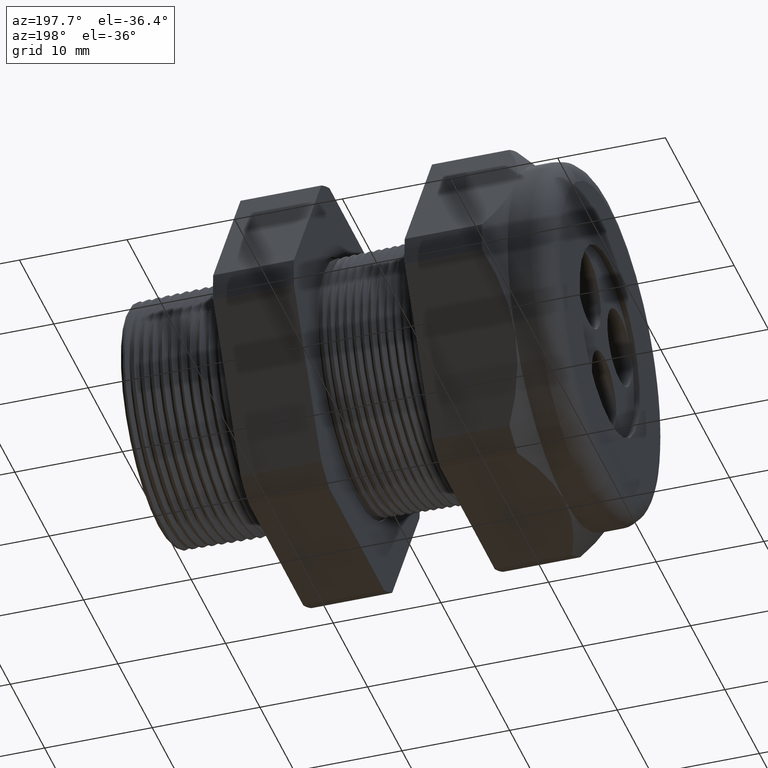
[diagram: clean part render]
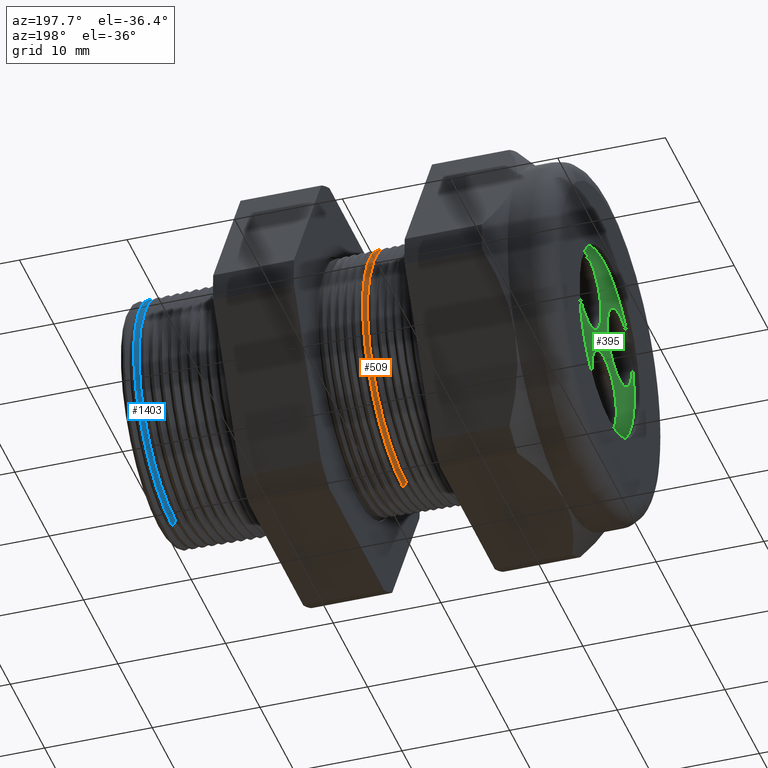
[diagram: same view with three faces highlighted in distinct colors, each labeled with its STEP entity id]
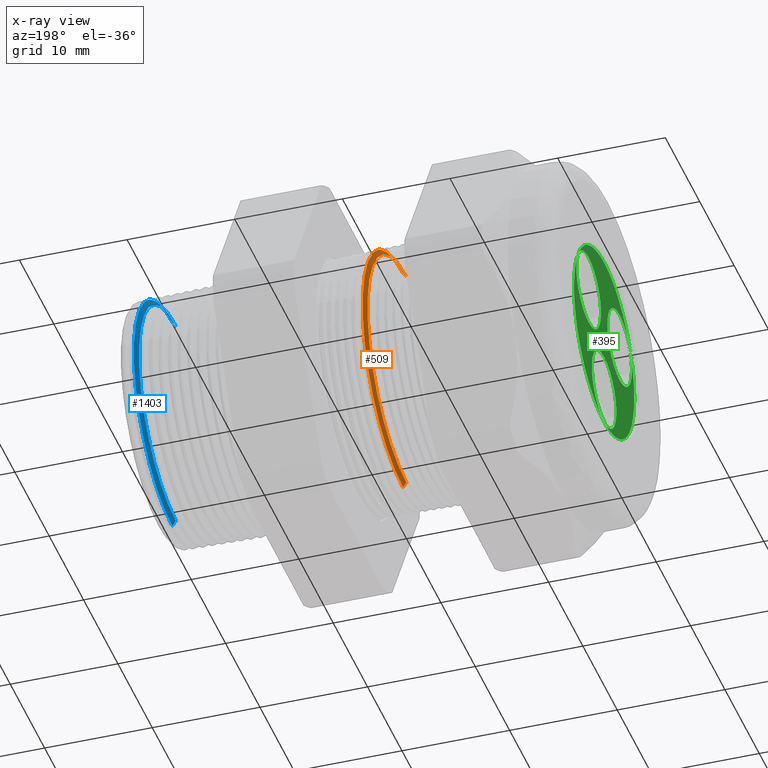
[diagram: x-ray of the same camera — body ghosted, the three highlighted faces saturated]
A machine part, auxiliary view with three faces highlighted in distinct colors.
The next image is the same camera in x-ray (body ghosted, the three faces saturated) — at least one of them is partly hidden behind the body in this view.
Their STEP definitions:

[orange] entity #509 — the highlighted conical surface has half-angle 58.5 deg.
#509 = ADVANCED_FACE ( 'NONE', ( #2498 ), #2497, .T. ) ;
#510 = EDGE_LOOP ( 'NONE', ( #511, #515, #570, #573 ) ) ;
#511 = ORIENTED_EDGE ( 'NONE', *, *, #512, .T. ) ;
#512 = EDGE_CURVE ( 'NONE', #513, #514, #2496, .T. ) ;
#513 = VERTEX_POINT ( 'NONE', #2487 ) ;
#514 = VERTEX_POINT ( 'NONE', #2486 ) ;
#515 = ORIENTED_EDGE ( 'NONE', *, *, #516, .T. ) ;
#516 = EDGE_CURVE ( 'NONE', #514, #569, #2485, .T. ) ;
#569 = VERTEX_POINT ( 'NONE', #2574 ) ;
#570 = ORIENTED_EDGE ( 'NONE', *, *, #571, .T. ) ;
#571 = EDGE_CURVE ( 'NONE', #569, #572, #2634, .T. ) ;
#572 = VERTEX_POINT ( 'NONE', #2629 ) ;
#573 = ORIENTED_EDGE ( 'NONE', *, *, #574, .F. ) ;
#574 = EDGE_CURVE ( 'NONE', #513, #572, #2628, .T. ) ;
#2482 = DIRECTION ( 'NONE',  ( 0.5224985647159348100, 1.044183048100722500E-016, 0.8526401643541007300 ) ) ;
#2483 = VECTOR ( 'NONE', #2482, 39.37007874015748900 ) ;
#2484 = CARTESIAN_POINT ( 'NONE',  ( -0.7865405736958170900, 5.445156066306895900E-017, 0.4446307351718083400 ) ) ;
#2485 = LINE ( 'NONE', #2484, #2483 ) ;
#2486 = CARTESIAN_POINT ( 'NONE',  ( -0.7865405736958170900, 0.0000000000000000000, 0.4446307351718083400 ) ) ;
#2487 = CARTESIAN_POINT ( 'NONE',  ( -0.7865405736958170900, 5.566340435444095800E-017, -0.4446307351718083400 ) ) ;
#2488 = DIRECTION ( 'NONE',  ( 0.0000000000000000000, 0.0000000000000000000, -1.000000000000000000 ) ) ;
#2489 = DIRECTION ( 'NONE',  ( 1.000000000000000000, 0.0000000000000000000, 0.0000000000000000000 ) ) ;
#2490 = CARTESIAN_POINT ( 'NONE',  ( -0.7865405736958170900, 0.0000000000000000000, 0.0000000000000000000 ) ) ;
#2491 = AXIS2_PLACEMENT_3D ( 'NONE', #2490, #2489, #2488 ) ;
#2492 = DIRECTION ( 'NONE',  ( 0.0000000000000000000, 0.0000000000000000000, -1.000000000000000000 ) ) ;
#2493 = DIRECTION ( 'NONE',  ( 1.000000000000000000, 0.0000000000000000000, 0.0000000000000000000 ) ) ;
#2494 = CARTESIAN_POINT ( 'NONE',  ( -0.7865405736958170900, 0.0000000000000000000, 0.0000000000000000000 ) ) ;
#2495 = AXIS2_PLACEMENT_3D ( 'NONE', #2494, #2493, #2492 ) ;
#2496 = CIRCLE ( 'NONE', #2491, 0.4446307351718083400 ) ;
#2497 = CONICAL_SURFACE ( 'NONE', #2495, 0.4446307351718083400, 1.021017612416699200 ) ;
#2498 = FACE_OUTER_BOUND ( 'NONE', #510, .T. ) ;
#2574 = CARTESIAN_POINT ( 'NONE',  ( -0.7747739369317310200, 0.0000000000000000000, 0.4638321412271148000 ) ) ;
#2625 = DIRECTION ( 'NONE',  ( 0.5224985647159348100, 0.0000000000000000000, -0.8526401643541007300 ) ) ;
#2626 = VECTOR ( 'NONE', #2625, 39.37007874015748900 ) ;
#2627 = CARTESIAN_POINT ( 'NONE',  ( -0.7865405736958170900, 0.0000000000000000000, -0.4446307351718083400 ) ) ;
#2628 = LINE ( 'NONE', #2627, #2626 ) ;
#2629 = CARTESIAN_POINT ( 'NONE',  ( -0.7747739369317310200, 5.680305470954492600E-017, -0.4638321412271148000 ) ) ;
#2630 = DIRECTION ( 'NONE',  ( 0.0000000000000000000, 0.0000000000000000000, -1.000000000000000000 ) ) ;
#2631 = DIRECTION ( 'NONE',  ( -1.000000000000000000, 0.0000000000000000000, 0.0000000000000000000 ) ) ;
#2632 = CARTESIAN_POINT ( 'NONE',  ( -0.7747739369317310200, 0.0000000000000000000, 0.0000000000000000000 ) ) ;
#2633 = AXIS2_PLACEMENT_3D ( 'NONE', #2632, #2631, #2630 ) ;
#2634 = CIRCLE ( 'NONE', #2633, 0.4638321412271147500 ) ;

[blue] entity #1403 — the highlighted conical surface has half-angle 58.5 deg.
#1329 = ORIENTED_EDGE ( 'NONE', *, *, #1369, .T. ) ;
#1330 = VERTEX_POINT ( 'NONE', #3787 ) ;
#1331 = EDGE_CURVE ( 'NONE', #1405, #1411, #3786, .T. ) ;
#1332 = EDGE_LOOP ( 'NONE', ( #1406, #1410, #1329, #1333 ) ) ;
#1333 = ORIENTED_EDGE ( 'NONE', *, *, #1334, .F. ) ;
#1334 = EDGE_CURVE ( 'NONE', #1407, #1330, #3782, .T. ) ;
#1369 = EDGE_CURVE ( 'NONE', #1411, #1330, #3834, .T. ) ;
#1403 = ADVANCED_FACE ( 'NONE', ( #3890 ), #3889, .T. ) ;
#1405 = VERTEX_POINT ( 'NONE', #3884 ) ;
#1406 = ORIENTED_EDGE ( 'NONE', *, *, #1408, .T. ) ;
#1407 = VERTEX_POINT ( 'NONE', #3883 ) ;
#1408 = EDGE_CURVE ( 'NONE', #1407, #1405, #3882, .T. ) ;
#1410 = ORIENTED_EDGE ( 'NONE', *, *, #1331, .T. ) ;
#1411 = VERTEX_POINT ( 'NONE', #3934 ) ;
#3779 = DIRECTION ( 'NONE',  ( 0.5224985647159347000, 0.0000000000000000000, -0.8526401643541008400 ) ) ;
#3780 = VECTOR ( 'NONE', #3779, 39.37007874015748100 ) ;
#3781 = CARTESIAN_POINT ( 'NONE',  ( 0.05652926432092481000, 0.0000000000000000000, -0.4212184895733915900 ) ) ;
#3782 = LINE ( 'NONE', #3781, #3780 ) ;
#3783 = DIRECTION ( 'NONE',  ( 0.5224985647159347000, 1.044183048100722800E-016, 0.8526401643541008400 ) ) ;
#3784 = VECTOR ( 'NONE', #3783, 39.37007874015748100 ) ;
#3785 = CARTESIAN_POINT ( 'NONE',  ( 0.05652926432092481000, 5.158438749977368000E-017, 0.4212184895733915900 ) ) ;
#3786 = LINE ( 'NONE', #3785, #3784 ) ;
#3787 = CARTESIAN_POINT ( 'NONE',  ( 0.06910148289796844100, 5.409687239479051700E-017, -0.4417344856692956300 ) ) ;
#3826 = DIRECTION ( 'NONE',  ( 0.0000000000000000000, 0.0000000000000000000, -1.000000000000000000 ) ) ;
#3827 = DIRECTION ( 'NONE',  ( -1.000000000000000000, 0.0000000000000000000, 0.0000000000000000000 ) ) ;
#3828 = CARTESIAN_POINT ( 'NONE',  ( 0.06910148289796844100, 0.0000000000000000000, 0.0000000000000000000 ) ) ;
#3829 = AXIS2_PLACEMENT_3D ( 'NONE', #3828, #3827, #3826 ) ;
#3834 = CIRCLE ( 'NONE', #3829, 0.4417344856692956300 ) ;
#3881 = AXIS2_PLACEMENT_3D ( 'NONE', #3943, #3942, #3941 ) ;
#3882 = CIRCLE ( 'NONE', #3881, 0.4212184895733915900 ) ;
#3883 = CARTESIAN_POINT ( 'NONE',  ( 0.05652926432092481000, 5.287919790946048300E-017, -0.4212184895733915900 ) ) ;
#3884 = CARTESIAN_POINT ( 'NONE',  ( 0.05652926432092481000, 0.0000000000000000000, 0.4212184895733915900 ) ) ;
#3885 = DIRECTION ( 'NONE',  ( 0.0000000000000000000, 0.0000000000000000000, -1.000000000000000000 ) ) ;
#3886 = DIRECTION ( 'NONE',  ( 1.000000000000000000, 0.0000000000000000000, 0.0000000000000000000 ) ) ;
#3887 = CARTESIAN_POINT ( 'NONE',  ( 0.05652926432092481000, 0.0000000000000000000, 0.0000000000000000000 ) ) ;
#3888 = AXIS2_PLACEMENT_3D ( 'NONE', #3887, #3886, #3885 ) ;
#3889 = CONICAL_SURFACE ( 'NONE', #3888, 0.4212184895733915900, 1.021017612416699400 ) ;
#3890 = FACE_OUTER_BOUND ( 'NONE', #1332, .T. ) ;
#3934 = CARTESIAN_POINT ( 'NONE',  ( 0.06910148289796844100, 0.0000000000000000000, 0.4417344856692956300 ) ) ;
#3941 = DIRECTION ( 'NONE',  ( 0.0000000000000000000, 0.0000000000000000000, -1.000000000000000000 ) ) ;
#3942 = DIRECTION ( 'NONE',  ( 1.000000000000000000, 0.0000000000000000000, 0.0000000000000000000 ) ) ;
#3943 = CARTESIAN_POINT ( 'NONE',  ( 0.05652926432092481000, 0.0000000000000000000, 0.0000000000000000000 ) ) ;

[green] entity #395 — the highlighted planar face has unit normal (-1, 0, 0).
#311 = VERTEX_POINT ( 'NONE', #2144 ) ;
#316 = VERTEX_POINT ( 'NONE', #2132 ) ;
#323 = EDGE_CURVE ( 'NONE', #335, #381, #2189, .T. ) ;
#335 = VERTEX_POINT ( 'NONE', #2168 ) ;
#356 = VERTEX_POINT ( 'NONE', #2199 ) ;
#358 = EDGE_CURVE ( 'NONE', #356, #378, #2197, .T. ) ;
#364 = VERTEX_POINT ( 'NONE', #2246 ) ;
#365 = VERTEX_POINT ( 'NONE', #2245 ) ;
#367 = EDGE_CURVE ( 'NONE', #364, #365, #2244, .T. ) ;
#378 = VERTEX_POINT ( 'NONE', #2280 ) ;
#381 = VERTEX_POINT ( 'NONE', #2279 ) ;
#386 = EDGE_CURVE ( 'NONE', #311, #316, #2268, .T. ) ;
#389 = ORIENTED_EDGE ( 'NONE', *, *, #367, .F. ) ;
#390 = EDGE_LOOP ( 'NONE', ( #391, #446 ) ) ;
#391 = ORIENTED_EDGE ( 'NONE', *, *, #452, .F. ) ;
#395 = ADVANCED_FACE ( 'NONE', ( #2317, #2316, #2315, #2314 ), #2313, .T. ) ;
#396 = EDGE_LOOP ( 'NONE', ( #456, #458 ) ) ;
#423 = EDGE_CURVE ( 'NONE', #316, #311, #2341, .T. ) ;
#440 = EDGE_LOOP ( 'NONE', ( #443, #447 ) ) ;
#443 = ORIENTED_EDGE ( 'NONE', *, *, #423, .T. ) ;
#446 = ORIENTED_EDGE ( 'NONE', *, *, #323, .F. ) ;
#447 = ORIENTED_EDGE ( 'NONE', *, *, #386, .T. ) ;
#452 = EDGE_CURVE ( 'NONE', #381, #335, #2365, .T. ) ;
#456 = ORIENTED_EDGE ( 'NONE', *, *, #457, .F. ) ;
#457 = EDGE_CURVE ( 'NONE', #378, #356, #2357, .T. ) ;
#458 = ORIENTED_EDGE ( 'NONE', *, *, #358, .F. ) ;
#459 = EDGE_LOOP ( 'NONE', ( #464, #389 ) ) ;
#464 = ORIENTED_EDGE ( 'NONE', *, *, #465, .F. ) ;
#465 = EDGE_CURVE ( 'NONE', #365, #364, #2398, .T. ) ;
#2132 = CARTESIAN_POINT ( 'NONE',  ( -1.509999999999999800, 0.0000000000000000000, 0.3449999999999999200 ) ) ;
#2144 = CARTESIAN_POINT ( 'NONE',  ( -1.509999999999999800, 4.225031457058367800E-017, -0.3449999999999999200 ) ) ;
#2168 = CARTESIAN_POINT ( 'NONE',  ( -1.509999999999999800, 1.714505518806294400E-017, -0.3444399999999999100 ) ) ;
#2185 = DIRECTION ( 'NONE',  ( 0.0000000000000000000, 0.0000000000000000000, 1.000000000000000000 ) ) ;
#2186 = DIRECTION ( 'NONE',  ( -1.000000000000000000, 0.0000000000000000000, 0.0000000000000000000 ) ) ;
#2187 = CARTESIAN_POINT ( 'NONE',  ( -1.509999999999999800, 0.0000000000000000000, -0.2044399999999999300 ) ) ;
#2188 = AXIS2_PLACEMENT_3D ( 'NONE', #2187, #2186, #2185 ) ;
#2189 = CIRCLE ( 'NONE', #2188, 0.1400000000000000100 ) ;
#2193 = DIRECTION ( 'NONE',  ( 0.0000000000000000000, -0.8660254037844432600, -0.4999999999999919500 ) ) ;
#2194 = DIRECTION ( 'NONE',  ( -1.000000000000000000, 0.0000000000000000000, 0.0000000000000000000 ) ) ;
#2195 = CARTESIAN_POINT ( 'NONE',  ( -1.509999999999999800, 0.1770502335496914900, 0.1022199999999983300 ) ) ;
#2196 = AXIS2_PLACEMENT_3D ( 'NONE', #2195, #2194, #2193 ) ;
#2197 = CIRCLE ( 'NONE', #2196, 0.1400000000000000100 ) ;
#2199 = CARTESIAN_POINT ( 'NONE',  ( -1.509999999999999800, 0.1770502335496915400, -0.03778000000000168700 ) ) ;
#2240 = DIRECTION ( 'NONE',  ( 0.0000000000000000000, 0.8660254037844362700, -0.5000000000000040000 ) ) ;
#2241 = DIRECTION ( 'NONE',  ( -1.000000000000000000, 0.0000000000000000000, 0.0000000000000000000 ) ) ;
#2242 = CARTESIAN_POINT ( 'NONE',  ( -1.509999999999999800, -0.1770502335496901300, 0.1022200000000008000 ) ) ;
#2243 = AXIS2_PLACEMENT_3D ( 'NONE', #2242, #2241, #2240 ) ;
#2244 = CIRCLE ( 'NONE', #2243, 0.1400000000000000400 ) ;
#2245 = CARTESIAN_POINT ( 'NONE',  ( -1.509999999999999800, -0.1770502335496901300, 0.2422200000000008200 ) ) ;
#2246 = CARTESIAN_POINT ( 'NONE',  ( -1.509999999999999800, -0.1770502335496901000, -0.03777999999999921000 ) ) ;
#2264 = DIRECTION ( 'NONE',  ( 0.0000000000000000000, 0.0000000000000000000, 1.000000000000000000 ) ) ;
#2265 = DIRECTION ( 'NONE',  ( -1.000000000000000000, 0.0000000000000000000, 0.0000000000000000000 ) ) ;
#2266 = CARTESIAN_POINT ( 'NONE',  ( -1.509999999999999800, 0.0000000000000000000, 0.0000000000000000000 ) ) ;
#2267 = AXIS2_PLACEMENT_3D ( 'NONE', #2266, #2265, #2264 ) ;
#2268 = CIRCLE ( 'NONE', #2267, 0.3449999999999999200 ) ;
#2279 = CARTESIAN_POINT ( 'NONE',  ( -1.509999999999999800, 0.0000000000000000000, -0.06443999999999991400 ) ) ;
#2280 = CARTESIAN_POINT ( 'NONE',  ( -1.509999999999999800, 0.1770502335496914900, 0.2422199999999983300 ) ) ;
#2309 = DIRECTION ( 'NONE',  ( 0.0000000000000000000, 0.0000000000000000000, 1.000000000000000000 ) ) ;
#2310 = DIRECTION ( 'NONE',  ( -1.000000000000000000, 0.0000000000000000000, 0.0000000000000000000 ) ) ;
#2311 = CARTESIAN_POINT ( 'NONE',  ( -1.509999999999999800, 0.0000000000000000000, 0.0000000000000000000 ) ) ;
#2312 = AXIS2_PLACEMENT_3D ( 'NONE', #2311, #2310, #2309 ) ;
#2313 = PLANE ( 'NONE',  #2312 ) ;
#2314 = FACE_OUTER_BOUND ( 'NONE', #440, .T. ) ;
#2315 = FACE_BOUND ( 'NONE', #390, .T. ) ;
#2316 = FACE_BOUND ( 'NONE', #459, .T. ) ;
#2317 = FACE_BOUND ( 'NONE', #396, .T. ) ;
#2337 = DIRECTION ( 'NONE',  ( 0.0000000000000000000, 0.0000000000000000000, 1.000000000000000000 ) ) ;
#2338 = DIRECTION ( 'NONE',  ( -1.000000000000000000, 0.0000000000000000000, 0.0000000000000000000 ) ) ;
#2339 = CARTESIAN_POINT ( 'NONE',  ( -1.509999999999999800, 0.0000000000000000000, 0.0000000000000000000 ) ) ;
#2340 = AXIS2_PLACEMENT_3D ( 'NONE', #2339, #2338, #2337 ) ;
#2341 = CIRCLE ( 'NONE', #2340, 0.3449999999999999200 ) ;
#2357 = CIRCLE ( 'NONE', #2415, 0.1400000000000000100 ) ;
#2362 = DIRECTION ( 'NONE',  ( 0.0000000000000000000, 0.0000000000000000000, 1.000000000000000000 ) ) ;
#2363 = DIRECTION ( 'NONE',  ( -1.000000000000000000, 0.0000000000000000000, 0.0000000000000000000 ) ) ;
#2364 = AXIS2_PLACEMENT_3D ( 'NONE', #2369, #2363, #2362 ) ;
#2365 = CIRCLE ( 'NONE', #2364, 0.1400000000000000100 ) ;
#2369 = CARTESIAN_POINT ( 'NONE',  ( -1.509999999999999800, 0.0000000000000000000, -0.2044399999999999300 ) ) ;
#2394 = DIRECTION ( 'NONE',  ( 0.0000000000000000000, 0.8660254037844362700, -0.5000000000000040000 ) ) ;
#2395 = DIRECTION ( 'NONE',  ( -1.000000000000000000, 0.0000000000000000000, 0.0000000000000000000 ) ) ;
#2396 = CARTESIAN_POINT ( 'NONE',  ( -1.509999999999999800, -0.1770502335496901300, 0.1022200000000008000 ) ) ;
#2397 = AXIS2_PLACEMENT_3D ( 'NONE', #2396, #2395, #2394 ) ;
#2398 = CIRCLE ( 'NONE', #2397, 0.1400000000000000400 ) ;
#2412 = DIRECTION ( 'NONE',  ( 0.0000000000000000000, -0.8660254037844432600, -0.4999999999999919500 ) ) ;
#2413 = DIRECTION ( 'NONE',  ( -1.000000000000000000, 0.0000000000000000000, 0.0000000000000000000 ) ) ;
#2414 = CARTESIAN_POINT ( 'NONE',  ( -1.509999999999999800, 0.1770502335496914900, 0.1022199999999983300 ) ) ;
#2415 = AXIS2_PLACEMENT_3D ( 'NONE', #2414, #2413, #2412 ) ;